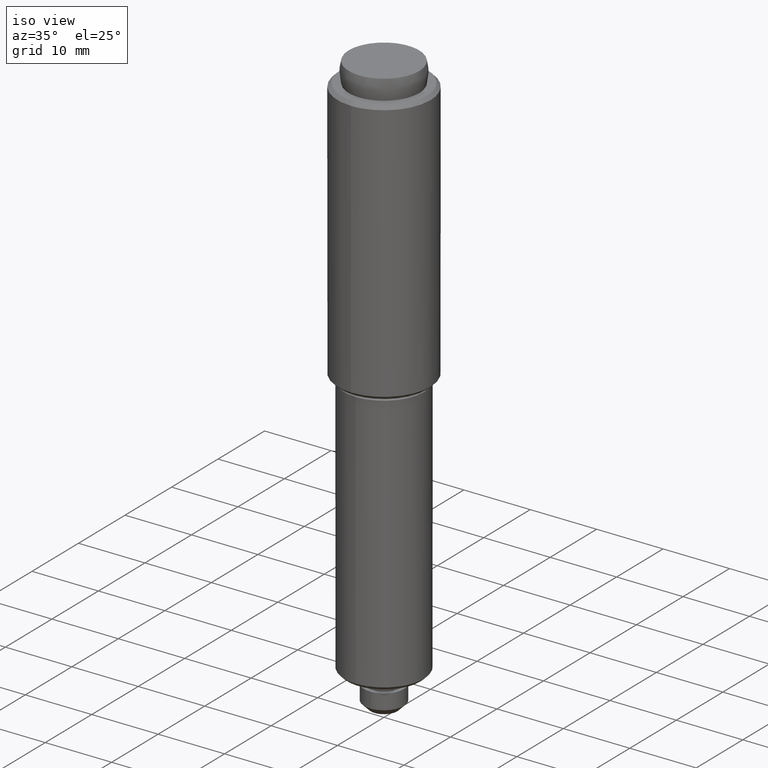
[diagram: clean part render]
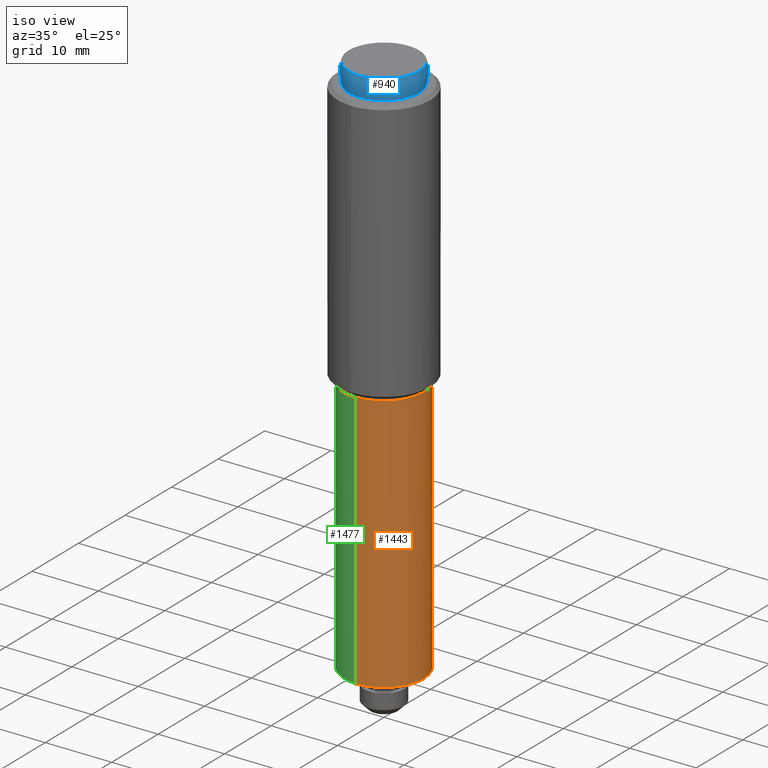
[diagram: same view with three faces highlighted in distinct colors, each labeled with its STEP entity id]
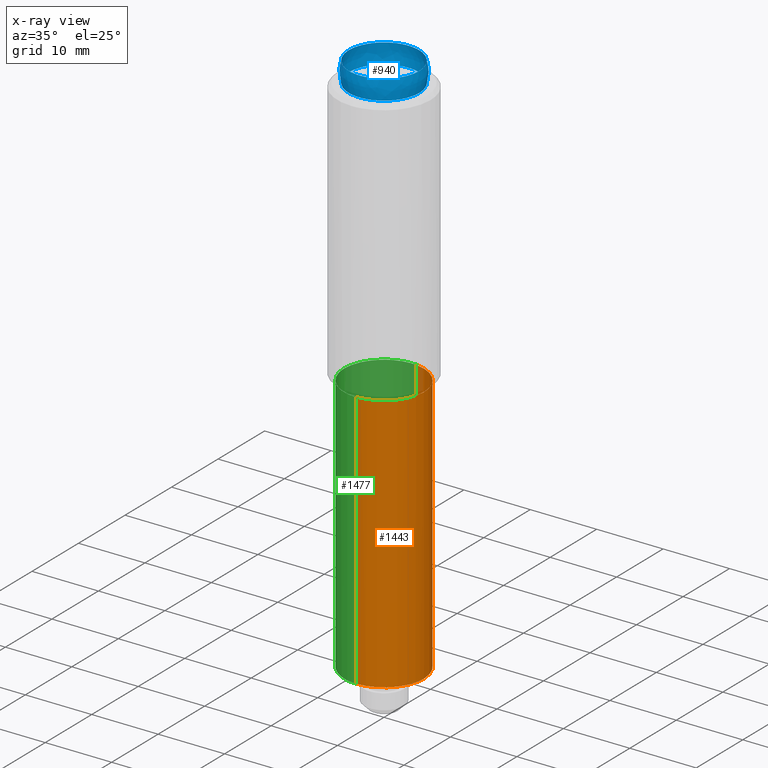
[diagram: x-ray of the same camera — body ghosted, the three highlighted faces saturated]
A machine part, iso view with three faces highlighted in distinct colors.
The next image is the same camera in x-ray (body ghosted, the three faces saturated) — at least one of them is partly hidden behind the body in this view.
Their STEP definitions:

[orange] entity #1443 — the highlighted face is a freeform B-spline surface patch.
#1016=CARTESIAN_POINT('',(0.744768012511510,5.953597282949162,44.500000000000000));
#1017=VERTEX_POINT('',#1016);
#1074=CARTESIAN_POINT('',(-0.052359213064938,-5.999771538384300,44.500000000000071));
#1075=VERTEX_POINT('',#1074);
#1081=CARTESIAN_POINT('',(6.0,0.0,44.500000000000000));
#1082=VERTEX_POINT('',#1081);
#1083=CARTESIAN_POINT('',(6.0,0.0,44.500000000000000));
#1084=CARTESIAN_POINT('',(6.0,-6.0,44.500000000000007));
#1085=CARTESIAN_POINT('',(0.0,-6.0,44.500000000000000));
#1086=CARTESIAN_POINT('',(-0.026180105073623,-6.000000000000001,44.500000000000000));
#1087=CARTESIAN_POINT('',(-0.052359213064938,-5.999771538384300,44.500000000000064));
#1095=(BOUNDED_CURVE()B_SPLINE_CURVE(2,(#1083,#1084,#1085,#1086,#1087),.UNSPECIFIED.,.F.,.U.)B_SPLINE_CURVE_WITH_KNOTS((3,2,3),(0.500000000000000,0.750000000000000,0.751539894343760),.UNSPECIFIED.)CURVE()GEOMETRIC_REPRESENTATION_ITEM()RATIONAL_B_SPLINE_CURVE((1.0,0.707106781186548,1.0,0.998195901556094,0.996414028080104))REPRESENTATION_ITEM(''));
#1096=EDGE_CURVE('',#1082,#1075,#1095,.T.);
#1098=CARTESIAN_POINT('',(0.744768012511510,5.953597282949162,44.500000000000000));
#1099=CARTESIAN_POINT('',(6.000000000000001,5.296191600843038,44.500000000000000));
#1100=CARTESIAN_POINT('',(6.0,0.0,44.500000000000000));
#1108=(BOUNDED_CURVE()B_SPLINE_CURVE(2,(#1098,#1099,#1100),.UNSPECIFIED.,.F.,.U.)B_SPLINE_CURVE_WITH_KNOTS((3,3),(0.271473928972544,0.500000000000000),.UNSPECIFIED.)CURVE()GEOMETRIC_REPRESENTATION_ITEM()RATIONAL_B_SPLINE_CURVE((0.954005430271142,0.732265053895907,1.0))REPRESENTATION_ITEM(''));
#1109=EDGE_CURVE('',#1017,#1082,#1108,.T.);
#1299=CARTESIAN_POINT('',(0.744765434439759,5.953597605453109,5.500000000000002));
#1300=VERTEX_POINT('',#1299);
#1316=CARTESIAN_POINT('',(6.0,0.0,5.500000000000000));
#1317=VERTEX_POINT('',#1316);
#1318=CARTESIAN_POINT('',(6.0,0.0,5.500000000000000));
#1319=CARTESIAN_POINT('',(6.000000000000002,5.296193912144371,5.500000000000000));
#1320=CARTESIAN_POINT('',(0.744765434439759,5.953597605453109,5.500000000000002));
#1328=(BOUNDED_CURVE()B_SPLINE_CURVE(2,(#1318,#1319,#1320),.UNSPECIFIED.,.F.,.U.)B_SPLINE_CURVE_WITH_KNOTS((3,3),(0.500000000000000,0.728526144056714),.UNSPECIFIED.)CURVE()GEOMETRIC_REPRESENTATION_ITEM()RATIONAL_B_SPLINE_CURVE((1.0,0.732264968336809,0.954005571992749))REPRESENTATION_ITEM(''));
#1329=EDGE_CURVE('',#1317,#1300,#1328,.T.);
#1331=CARTESIAN_POINT('',(-0.052359213123881,-5.999771538383861,5.500000000000000));
#1332=VERTEX_POINT('',#1331);
#1333=CARTESIAN_POINT('',(-0.052359213123881,-5.999771538383861,5.500000000000000));
#1334=CARTESIAN_POINT('',(-0.026180105057855,-5.999999999999999,5.500000000000001));
#1335=CARTESIAN_POINT('',(0.0,-6.0,5.500000000000000));
#1336=CARTESIAN_POINT('',(6.0,-6.0,5.500000000000001));
#1337=CARTESIAN_POINT('',(6.0,0.0,5.500000000000000));
#1345=(BOUNDED_CURVE()B_SPLINE_CURVE(2,(#1333,#1334,#1335,#1336,#1337),.UNSPECIFIED.,.F.,.U.)B_SPLINE_CURVE_WITH_KNOTS((3,2,3),(0.248460105657166,0.250000000000000,0.500000000000000),.UNSPECIFIED.)CURVE()GEOMETRIC_REPRESENTATION_ITEM()RATIONAL_B_SPLINE_CURVE((0.996414028082246,0.998195901557179,1.0,0.707106781186548,1.0))REPRESENTATION_ITEM(''));
#1346=EDGE_CURVE('',#1332,#1317,#1345,.T.);
#1409=CARTESIAN_POINT('',(0.744768012478976,5.953597282953231,45.475000000000016));
#1410=CARTESIAN_POINT('',(6.046396983014668,5.290387548799326,45.475000000000009));
#1411=CARTESIAN_POINT('',(5.999771538385026,-0.052359212990243,45.475000000000009));
#1412=CARTESIAN_POINT('',(5.947412325394783,-6.052130751375269,45.475000000000016));
#1413=CARTESIAN_POINT('',(-0.052359212990243,-5.999771538385026,45.475000000000009));
#1414=CARTESIAN_POINT('',(0.744768012478976,5.953597282953231,4.500624999999999));
#1415=CARTESIAN_POINT('',(6.046396983014668,5.290387548799326,4.500624999999999));
#1416=CARTESIAN_POINT('',(5.999771538385026,-0.052359212990243,4.500624999999999));
#1417=CARTESIAN_POINT('',(5.947412325394783,-6.052130751375269,4.500624999999999));
#1418=CARTESIAN_POINT('',(-0.052359212990243,-5.999771538385026,4.500624999999999));
#1426=(BOUNDED_SURFACE()B_SPLINE_SURFACE(2,1,((#1409,#1414),(#1410,#1415),(#1411,#1416),(#1412,#1417),(#1413,#1418)),.UNSPECIFIED.,.F.,.F.,.U.)B_SPLINE_SURFACE_WITH_KNOTS((3,2,3),(2,2),(0.0,9.145835457197935,19.086960954152211),(0.0,40.974375000000009),.UNSPECIFIED.)GEOMETRIC_REPRESENTATION_ITEM()RATIONAL_B_SPLINE_SURFACE(((0.956886118190660,0.956886118190660),(0.730538238691624,0.730538238691624),(1.0,1.0),(0.707106781186548,0.707106781186548),(1.0,1.0)))REPRESENTATION_ITEM('')SURFACE());
#1427=ORIENTED_EDGE('',*,*,#1109,.T.);
#1428=ORIENTED_EDGE('',*,*,#1096,.T.);
#1429=CARTESIAN_POINT('',(-0.052359213064938,-5.999771538384300,44.500000000000071));
#1430=CARTESIAN_POINT('',(-0.052359213123881,-5.999771538383861,5.500000000000000));
#1431=QUASI_UNIFORM_CURVE('',1,(#1429,#1430),.UNSPECIFIED.,.F.,.U.);
#1432=EDGE_CURVE('',#1075,#1332,#1431,.T.);
#1433=ORIENTED_EDGE('',*,*,#1432,.T.);
#1434=ORIENTED_EDGE('',*,*,#1346,.T.);
#1435=ORIENTED_EDGE('',*,*,#1329,.T.);
#1436=CARTESIAN_POINT('',(0.744768012511510,5.953597282949162,44.500000000000000));
#1437=CARTESIAN_POINT('',(0.744765434439759,5.953597605453109,5.500000000000002));
#1438=QUASI_UNIFORM_CURVE('',1,(#1436,#1437),.UNSPECIFIED.,.F.,.U.);
#1439=EDGE_CURVE('',#1017,#1300,#1438,.T.);
#1440=ORIENTED_EDGE('',*,*,#1439,.F.);
#1441=EDGE_LOOP('',(#1427,#1428,#1433,#1434,#1435,#1440));
#1442=FACE_OUTER_BOUND('',#1441,.T.);
#1443=ADVANCED_FACE('',(#1442),#1426,.T.);

[blue] entity #940 — the highlighted face is a freeform B-spline surface patch.
#813=CARTESIAN_POINT('',(-5.291502622129160,0.0,85.0));
#814=VERTEX_POINT('',#813);
#815=CARTESIAN_POINT('',(5.291502622129160,0.0,85.0));
#816=VERTEX_POINT('',#815);
#817=CARTESIAN_POINT('',(-5.291502622129160,0.0,85.0));
#818=CARTESIAN_POINT('',(-5.291502622129161,5.291502622129161,85.0));
#819=CARTESIAN_POINT('',(0.0,5.291502622129160,85.0));
#820=CARTESIAN_POINT('',(5.291502622129161,5.291502622129161,85.0));
#821=CARTESIAN_POINT('',(5.291502622129160,0.0,85.0));
#829=(BOUNDED_CURVE()B_SPLINE_CURVE(2,(#817,#818,#819,#820,#821),.UNSPECIFIED.,.F.,.U.)B_SPLINE_CURVE_WITH_KNOTS((3,2,3),(0.0,0.250000000000000,0.500000000000000),.UNSPECIFIED.)CURVE()GEOMETRIC_REPRESENTATION_ITEM()RATIONAL_B_SPLINE_CURVE((1.0,0.707106781186548,1.0,0.707106781186548,1.0))REPRESENTATION_ITEM(''));
#830=EDGE_CURVE('',#814,#816,#829,.T.);
#832=CARTESIAN_POINT('',(5.291502622129160,0.0,85.0));
#833=CARTESIAN_POINT('',(5.291502622129161,-5.291502622129161,85.0));
#834=CARTESIAN_POINT('',(0.0,-5.291502622129160,85.0));
#835=CARTESIAN_POINT('',(-5.291502622129161,-5.291502622129161,85.0));
#836=CARTESIAN_POINT('',(-5.291502622129160,0.0,85.0));
#844=(BOUNDED_CURVE()B_SPLINE_CURVE(2,(#832,#833,#834,#835,#836),.UNSPECIFIED.,.F.,.U.)B_SPLINE_CURVE_WITH_KNOTS((3,2,3),(0.500000000000000,0.750000000000000,1.0),.UNSPECIFIED.)CURVE()GEOMETRIC_REPRESENTATION_ITEM()RATIONAL_B_SPLINE_CURVE((1.0,0.707106781186548,1.0,0.707106781186548,1.0))REPRESENTATION_ITEM(''));
#845=EDGE_CURVE('',#816,#814,#844,.T.);
#856=CARTESIAN_POINT('',(-3.164920355138445,3.164920355138448,89.696335134378245));
#857=CARTESIAN_POINT('',(-2.958400271391461,3.944533695188615,89.128874453313145));
#858=CARTESIAN_POINT('',(-1.308441104694644,5.233764418778562,88.190476266833542));
#859=CARTESIAN_POINT('',(1.308441104694635,5.233764418778562,88.190476266833542));
#860=CARTESIAN_POINT('',(2.958400271391450,3.944533695188615,89.128874453313145));
#861=CARTESIAN_POINT('',(3.164920355138428,3.164920355138448,89.696335134378245));
#862=CARTESIAN_POINT('',(-3.944533695188613,2.958400271391464,89.128874453313145));
#863=CARTESIAN_POINT('',(-3.925323314083923,3.925323314083923,88.190476266833500));
#864=CARTESIAN_POINT('',(-1.943729239503866,5.831187718511600,86.340836097114476));
#865=CARTESIAN_POINT('',(1.943729239503867,5.831187718511600,86.340836097114476));
#866=CARTESIAN_POINT('',(3.925323314083916,3.925323314083923,88.190476266833542));
#867=CARTESIAN_POINT('',(3.944533695188599,2.958400271391464,89.128874453313145));
#868=CARTESIAN_POINT('',(-5.233764418778562,1.308441104694645,88.190476266833542));
#869=CARTESIAN_POINT('',(-5.831187718511600,1.943729239503866,86.340836097114476));
#870=CARTESIAN_POINT('',(-3.778123765533746,3.778123765533743,80.999999999999986));
#871=CARTESIAN_POINT('',(3.778123765533774,3.778123765533743,81.0));
#872=CARTESIAN_POINT('',(5.831187718511600,1.943729239503866,86.340836097114519));
#873=CARTESIAN_POINT('',(5.233764418778556,1.308441104694645,88.190476266833542));
#874=CARTESIAN_POINT('',(-5.233764418778562,-1.308441104694635,88.190476266833542));
#875=CARTESIAN_POINT('',(-5.831187718511600,-1.943729239503867,86.340836097114476));
#876=CARTESIAN_POINT('',(-3.778123765533746,-3.778123765533776,81.0));
#877=CARTESIAN_POINT('',(3.778123765533774,-3.778123765533776,81.000000000000028));
#878=CARTESIAN_POINT('',(5.831187718511600,-1.943729239503867,86.340836097114519));
#879=CARTESIAN_POINT('',(5.233764418778556,-1.308441104694635,88.190476266833542));
#880=CARTESIAN_POINT('',(-3.944533695188613,-2.958400271391448,89.128874453313145));
#881=CARTESIAN_POINT('',(-3.925323314083923,-3.925323314083912,88.190476266833542));
#882=CARTESIAN_POINT('',(-1.943729239503866,-5.831187718511600,86.340836097114519));
#883=CARTESIAN_POINT('',(1.943729239503867,-5.831187718511600,86.340836097114519));
#884=CARTESIAN_POINT('',(3.925323314083916,-3.925323314083912,88.190476266833542));
#885=CARTESIAN_POINT('',(3.944533695188599,-2.958400271391448,89.128874453313173));
#886=CARTESIAN_POINT('',(-3.164920355138445,-3.164920355138426,89.696335134378245));
#887=CARTESIAN_POINT('',(-2.958400271391461,-3.944533695188599,89.128874453313145));
#888=CARTESIAN_POINT('',(-1.308441104694644,-5.233764418778556,88.190476266833542));
#889=CARTESIAN_POINT('',(1.308441104694635,-5.233764418778556,88.190476266833542));
#890=CARTESIAN_POINT('',(2.958400271391450,-3.944533695188599,89.128874453313173));
#891=CARTESIAN_POINT('',(3.164920355138428,-3.164920355138426,89.696335134378273));
#899=(BOUNDED_SURFACE()B_SPLINE_SURFACE(2,2,((#856,#862,#868,#874,#880,#886),(#857,#863,#869,#875,#881,#887),(#858,#864,#870,#876,#882,#888),(#859,#865,#871,#877,#883,#889),(#860,#866,#872,#878,#884,#890),(#861,#867,#873,#879,#885,#891)),.UNSPECIFIED.,.F.,.F.,.U.)B_SPLINE_SURFACE_WITH_KNOTS((3,1,1,1,3),(3,1,1,1,3),(0.0,6.113777991878241,12.227555983756480,18.341333975634718,24.455111967512959),(0.0,6.113777991878249,12.227555983756501,18.341333975634750,24.455111967513002),.UNSPECIFIED.)GEOMETRIC_REPRESENTATION_ITEM()RATIONAL_B_SPLINE_SURFACE(((4.775000115752993,3.831250086814745,2.887500057876497,2.887500057876497,3.831250086814745,4.775000115752993),(3.831250086814745,2.887500057876497,1.943750028938248,1.943750028938248,2.887500057876497,3.831250086814745),(2.887500057876497,1.943750028938248,1.0,1.0,1.943750028938248,2.887500057876497),(2.887500057876497,1.943750028938248,1.0,1.0,1.943750028938248,2.887500057876497),(3.831250086814745,2.887500057876497,1.943750028938248,1.943750028938248,2.887500057876497,3.831250086814745),(4.775000115752993,3.831250086814745,2.887500057876497,2.887500057876497,3.831250086814745,4.775000115752993)))REPRESENTATION_ITEM('')SURFACE());
#900=ORIENTED_EDGE('',*,*,#830,.F.);
#901=ORIENTED_EDGE('',*,*,#845,.F.);
#902=EDGE_LOOP('',(#900,#901));
#903=FACE_OUTER_BOUND('',#902,.T.);
#904=CARTESIAN_POINT('',(-5.291502599401650,0.0,88.000000080175198));
#905=VERTEX_POINT('',#904);
#906=CARTESIAN_POINT('',(5.291502599401650,0.0,88.000000080175198));
#907=VERTEX_POINT('',#906);
#908=CARTESIAN_POINT('',(-5.291502599401650,0.0,88.000000080175198));
#909=CARTESIAN_POINT('',(-5.291502599401650,5.291502599401650,88.000000080175212));
#910=CARTESIAN_POINT('',(0.0,5.291502599401650,88.000000080175198));
#911=CARTESIAN_POINT('',(5.291502599401650,5.291502599401650,88.000000080175212));
#912=CARTESIAN_POINT('',(5.291502599401650,0.0,88.000000080175198));
#920=(BOUNDED_CURVE()B_SPLINE_CURVE(2,(#908,#909,#910,#911,#912),.UNSPECIFIED.,.F.,.U.)B_SPLINE_CURVE_WITH_KNOTS((3,2,3),(0.0,0.250000000000000,0.500000000000000),.UNSPECIFIED.)CURVE()GEOMETRIC_REPRESENTATION_ITEM()RATIONAL_B_SPLINE_CURVE((1.0,0.707106781186548,1.0,0.707106781186548,1.0))REPRESENTATION_ITEM(''));
#921=EDGE_CURVE('',#905,#907,#920,.T.);
#922=ORIENTED_EDGE('',*,*,#921,.T.);
#923=CARTESIAN_POINT('',(5.291502599401650,0.0,88.000000080175198));
#924=CARTESIAN_POINT('',(5.291502599401650,-5.291502599401650,88.000000080175212));
#925=CARTESIAN_POINT('',(0.0,-5.291502599401650,88.000000080175198));
#926=CARTESIAN_POINT('',(-5.291502599401650,-5.291502599401650,88.000000080175212));
#927=CARTESIAN_POINT('',(-5.291502599401650,0.0,88.000000080175198));
#935=(BOUNDED_CURVE()B_SPLINE_CURVE(2,(#923,#924,#925,#926,#927),.UNSPECIFIED.,.F.,.U.)B_SPLINE_CURVE_WITH_KNOTS((3,2,3),(0.500000000000000,0.750000000000000,1.0),.UNSPECIFIED.)CURVE()GEOMETRIC_REPRESENTATION_ITEM()RATIONAL_B_SPLINE_CURVE((1.0,0.707106781186548,1.0,0.707106781186548,1.0))REPRESENTATION_ITEM(''));
#936=EDGE_CURVE('',#907,#905,#935,.T.);
#937=ORIENTED_EDGE('',*,*,#936,.T.);
#938=EDGE_LOOP('',(#922,#937));
#939=FACE_BOUND('',#938,.T.);
#940=ADVANCED_FACE('',(#903,#939),#899,.T.);

[green] entity #1477 — the highlighted face is a freeform B-spline surface patch.
#1014=CARTESIAN_POINT('',(-2.425292591992163,5.487982857416580,44.499999999994138));
#1015=VERTEX_POINT('',#1014);
#1016=CARTESIAN_POINT('',(0.744768012511510,5.953597282949162,44.500000000000000));
#1017=VERTEX_POINT('',#1016);
#1018=CARTESIAN_POINT('',(-2.425292591992164,5.487982857416580,44.499999999994145));
#1019=CARTESIAN_POINT('',(-1.266693703582725,5.999999999999999,44.500000000000000));
#1020=CARTESIAN_POINT('',(0.0,6.0,44.500000000000000));
#1021=CARTESIAN_POINT('',(0.373829565233879,6.000000000000001,44.500000000000000));
#1022=CARTESIAN_POINT('',(0.744768012511510,5.953597282949162,44.500000000000000));
#1030=(BOUNDED_CURVE()B_SPLINE_CURVE(2,(#1018,#1019,#1020,#1021,#1022),.UNSPECIFIED.,.F.,.U.)B_SPLINE_CURVE_WITH_KNOTS((3,2,3),(0.181361578456374,0.250000000000000,0.271473928972544),.UNSPECIFIED.)CURVE()GEOMETRIC_REPRESENTATION_ITEM()RATIONAL_B_SPLINE_CURVE((0.883326595748125,0.919585087119251,1.0,0.974841727290640,0.954005430271142))REPRESENTATION_ITEM(''));
#1031=EDGE_CURVE('',#1015,#1017,#1030,.T.);
#1074=CARTESIAN_POINT('',(-0.052359213064938,-5.999771538384300,44.500000000000071));
#1075=VERTEX_POINT('',#1074);
#1132=CARTESIAN_POINT('',(-6.0,0.0,44.500000000000000));
#1133=VERTEX_POINT('',#1132);
#1134=CARTESIAN_POINT('',(-6.0,0.0,44.500000000000000));
#1135=CARTESIAN_POINT('',(-6.000000000000001,3.908220015452363,44.500000000000014));
#1136=CARTESIAN_POINT('',(-2.425292591992164,5.487982857416580,44.499999999994145));
#1144=(BOUNDED_CURVE()B_SPLINE_CURVE(2,(#1134,#1135,#1136),.UNSPECIFIED.,.F.,.U.)B_SPLINE_CURVE_WITH_KNOTS((3,3),(0.0,0.181361578456374),.UNSPECIFIED.)CURVE()GEOMETRIC_REPRESENTATION_ITEM()RATIONAL_B_SPLINE_CURVE((1.0,0.787521694067296,0.883326595748125))REPRESENTATION_ITEM(''));
#1145=EDGE_CURVE('',#1133,#1015,#1144,.T.);
#1147=CARTESIAN_POINT('',(-0.052359213064938,-5.999771538384300,44.500000000000071));
#1148=CARTESIAN_POINT('',(-5.999999999999999,-5.947867263273662,44.500000000000000));
#1149=CARTESIAN_POINT('',(-6.0,0.0,44.500000000000000));
#1157=(BOUNDED_CURVE()B_SPLINE_CURVE(2,(#1147,#1148,#1149),.UNSPECIFIED.,.F.,.U.)B_SPLINE_CURVE_WITH_KNOTS((3,3),(0.751539894343759,1.0),.UNSPECIFIED.)CURVE()GEOMETRIC_REPRESENTATION_ITEM()RATIONAL_B_SPLINE_CURVE((0.996414028080106,0.708910879630452,1.0))REPRESENTATION_ITEM(''));
#1158=EDGE_CURVE('',#1075,#1133,#1157,.T.);
#1219=CARTESIAN_POINT('',(-5.845308919065300,1.353648270700482,5.500000000006201));
#1220=VERTEX_POINT('',#1219);
#1221=CARTESIAN_POINT('',(-6.0,0.0,5.500000000000000));
#1222=VERTEX_POINT('',#1221);
#1223=CARTESIAN_POINT('',(-5.845308919065300,1.353648270700482,5.500000000006201));
#1224=CARTESIAN_POINT('',(-6.0,0.685662964133747,5.500000000000000));
#1225=CARTESIAN_POINT('',(-6.0,0.0,5.500000000000000));
#1233=(BOUNDED_CURVE()B_SPLINE_CURVE(2,(#1223,#1224,#1225),.UNSPECIFIED.,.F.,.U.)B_SPLINE_CURVE_WITH_KNOTS((3,3),(0.961422971781638,1.0),.UNSPECIFIED.)CURVE()GEOMETRIC_REPRESENTATION_ITEM()RATIONAL_B_SPLINE_CURVE((0.923556557437971,0.954804200131466,1.0))REPRESENTATION_ITEM(''));
#1234=EDGE_CURVE('',#1220,#1222,#1233,.T.);
#1292=CARTESIAN_POINT('',(-0.052359213740734,5.999771538480703,5.500000000102194));
#1293=VERTEX_POINT('',#1292);
#1299=CARTESIAN_POINT('',(0.744765434439759,5.953597605453109,5.500000000000002));
#1300=VERTEX_POINT('',#1299);
#1301=CARTESIAN_POINT('',(0.744765434439759,5.953597605453109,5.500000000000002));
#1302=CARTESIAN_POINT('',(0.373828261091895,6.0,5.500000000000000));
#1303=CARTESIAN_POINT('',(0.0,6.0,5.500000000000000));
#1304=CARTESIAN_POINT('',(-0.026180105673862,5.999999999999999,5.500000000000000));
#1305=CARTESIAN_POINT('',(-0.052359213740734,5.999771538480703,5.500000000102195));
#1313=(BOUNDED_CURVE()B_SPLINE_CURVE(2,(#1301,#1302,#1303,#1304,#1305),.UNSPECIFIED.,.F.,.U.)B_SPLINE_CURVE_WITH_KNOTS((3,2,3),(0.728526144056714,0.750000000000000,0.751539894379002),.UNSPECIFIED.)CURVE()GEOMETRIC_REPRESENTATION_ITEM()RATIONAL_B_SPLINE_CURVE((0.954005571992749,0.974841812849739,1.0,0.998195901514806,0.996414027998544))REPRESENTATION_ITEM(''));
#1314=EDGE_CURVE('',#1300,#1293,#1313,.T.);
#1331=CARTESIAN_POINT('',(-0.052359213123881,-5.999771538383861,5.500000000000000));
#1332=VERTEX_POINT('',#1331);
#1348=CARTESIAN_POINT('',(-6.0,0.0,5.500000000000000));
#1349=CARTESIAN_POINT('',(-6.000000000000002,-5.947867263304896,5.500000000000000));
#1350=CARTESIAN_POINT('',(-0.052359213123881,-5.999771538383861,5.500000000000000));
#1358=(BOUNDED_CURVE()B_SPLINE_CURVE(2,(#1348,#1349,#1350),.UNSPECIFIED.,.F.,.U.)B_SPLINE_CURVE_WITH_KNOTS((3,3),(0.0,0.248460105657166),.UNSPECIFIED.)CURVE()GEOMETRIC_REPRESENTATION_ITEM()RATIONAL_B_SPLINE_CURVE((1.0,0.708910879629369,0.996414028082246))REPRESENTATION_ITEM(''));
#1359=EDGE_CURVE('',#1222,#1332,#1358,.T.);
#1378=CARTESIAN_POINT('',(-0.052359213740734,5.999771538480703,5.500000000102194));
#1379=CARTESIAN_POINT('',(-4.778918511090197,5.958523479104185,5.500000000000000));
#1380=CARTESIAN_POINT('',(-5.845308919065300,1.353648270700482,5.500000000006202));
#1388=(BOUNDED_CURVE()B_SPLINE_CURVE(2,(#1378,#1379,#1380),.UNSPECIFIED.,.F.,.U.)B_SPLINE_CURVE_WITH_KNOTS((3,3),(0.751539894379001,0.961422971781638),.UNSPECIFIED.)CURVE()GEOMETRIC_REPRESENTATION_ITEM()RATIONAL_B_SPLINE_CURVE((0.996414027998546,0.753549905474898,0.923556557437972))REPRESENTATION_ITEM(''));
#1389=EDGE_CURVE('',#1293,#1220,#1388,.T.);
#1429=CARTESIAN_POINT('',(-0.052359213064938,-5.999771538384300,44.500000000000071));
#1430=CARTESIAN_POINT('',(-0.052359213123881,-5.999771538383861,5.500000000000000));
#1431=QUASI_UNIFORM_CURVE('',1,(#1429,#1430),.UNSPECIFIED.,.F.,.U.);
#1432=EDGE_CURVE('',#1075,#1332,#1431,.T.);
#1436=CARTESIAN_POINT('',(0.744768012511510,5.953597282949162,44.500000000000000));
#1437=CARTESIAN_POINT('',(0.744765434439759,5.953597605453109,5.500000000000002));
#1438=QUASI_UNIFORM_CURVE('',1,(#1436,#1437),.UNSPECIFIED.,.F.,.U.);
#1439=EDGE_CURVE('',#1017,#1300,#1438,.T.);
#1444=CARTESIAN_POINT('',(-0.052359212990243,-5.999771538385026,45.475000000000009));
#1445=CARTESIAN_POINT('',(-6.052130751375269,-5.947412325394783,45.475000000000016));
#1446=CARTESIAN_POINT('',(-5.999771538385026,0.052359212990243,45.475000000000009));
#1447=CARTESIAN_POINT('',(-5.947412325394783,6.052130751375269,45.475000000000016));
#1448=CARTESIAN_POINT('',(0.052359212990243,5.999771538385026,45.475000000000009));
#1449=CARTESIAN_POINT('',(0.399900953749042,5.996738587561654,45.475000000000009));
#1450=CARTESIAN_POINT('',(0.744768012478976,5.953597282953231,45.475000000000016));
#1451=CARTESIAN_POINT('',(-0.052359212990243,-5.999771538385026,4.500624999999999));
#1452=CARTESIAN_POINT('',(-6.052130751375269,-5.947412325394783,4.500624999999999));
#1453=CARTESIAN_POINT('',(-5.999771538385026,0.052359212990243,4.500624999999999));
#1454=CARTESIAN_POINT('',(-5.947412325394783,6.052130751375269,4.500624999999999));
#1455=CARTESIAN_POINT('',(0.052359212990243,5.999771538385026,4.500624999999999));
#1456=CARTESIAN_POINT('',(0.399900953749042,5.996738587561654,4.500624999999999));
#1457=CARTESIAN_POINT('',(0.744768012478976,5.953597282953231,4.500624999999999));
#1465=(BOUNDED_SURFACE()B_SPLINE_SURFACE(2,1,((#1444,#1451),(#1445,#1452),(#1446,#1453),(#1447,#1454),(#1448,#1455),(#1449,#1456),(#1450,#1457)),.UNSPECIFIED.,.F.,.F.,.U.)B_SPLINE_SURFACE_WITH_KNOTS((3,2,2,3),(2,2),(0.0,9.941125496954278,19.882250993908560,20.677541033664902),(0.0,40.974375000000009),.UNSPECIFIED.)GEOMETRIC_REPRESENTATION_ITEM()RATIONAL_B_SPLINE_SURFACE(((1.0,1.0),(0.707106781186548,0.707106781186548),(1.0,1.0),(0.707106781186548,0.707106781186548),(1.0,1.0),(0.976568542494924,0.976568542494924),(0.956886118190660,0.956886118190660)))REPRESENTATION_ITEM('')SURFACE());
#1466=ORIENTED_EDGE('',*,*,#1145,.T.);
#1467=ORIENTED_EDGE('',*,*,#1031,.T.);
#1468=ORIENTED_EDGE('',*,*,#1439,.T.);
#1469=ORIENTED_EDGE('',*,*,#1314,.T.);
#1470=ORIENTED_EDGE('',*,*,#1389,.T.);
#1471=ORIENTED_EDGE('',*,*,#1234,.T.);
#1472=ORIENTED_EDGE('',*,*,#1359,.T.);
#1473=ORIENTED_EDGE('',*,*,#1432,.F.);
#1474=ORIENTED_EDGE('',*,*,#1158,.T.);
#1475=EDGE_LOOP('',(#1466,#1467,#1468,#1469,#1470,#1471,#1472,#1473,#1474));
#1476=FACE_OUTER_BOUND('',#1475,.T.);
#1477=ADVANCED_FACE('',(#1476),#1465,.T.);